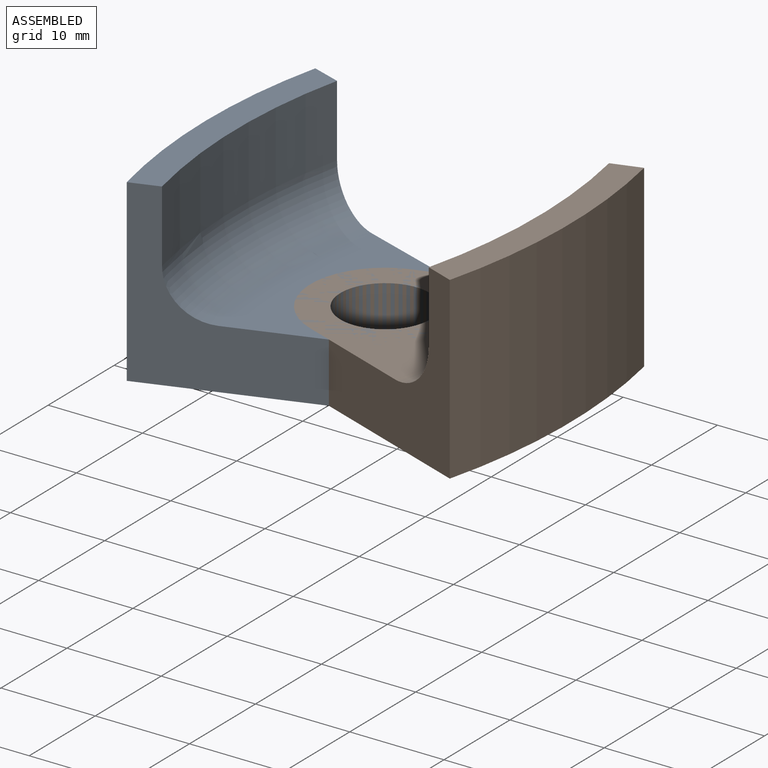
[diagram: assembled view]
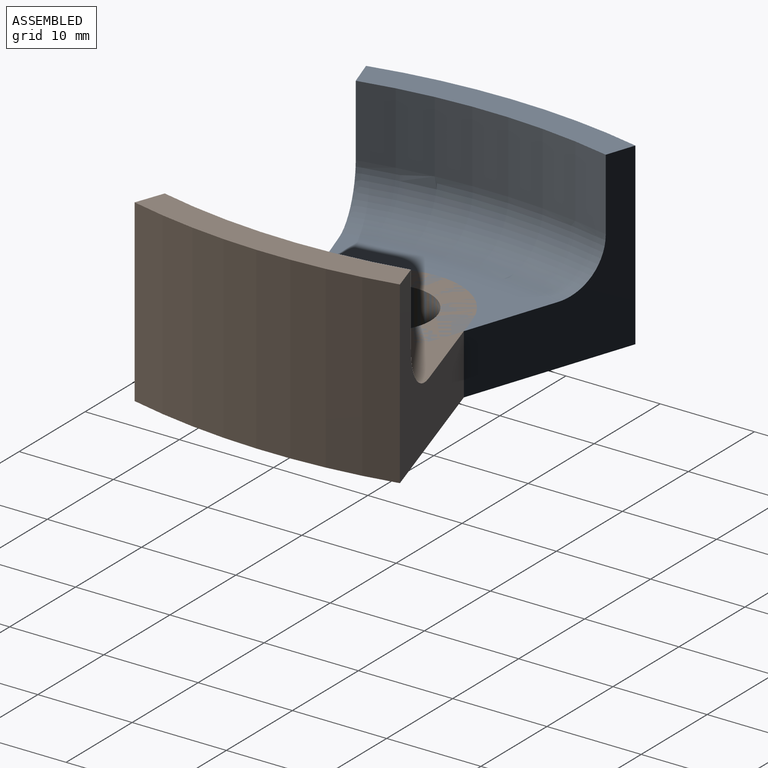
[diagram: assembled view, second angle]
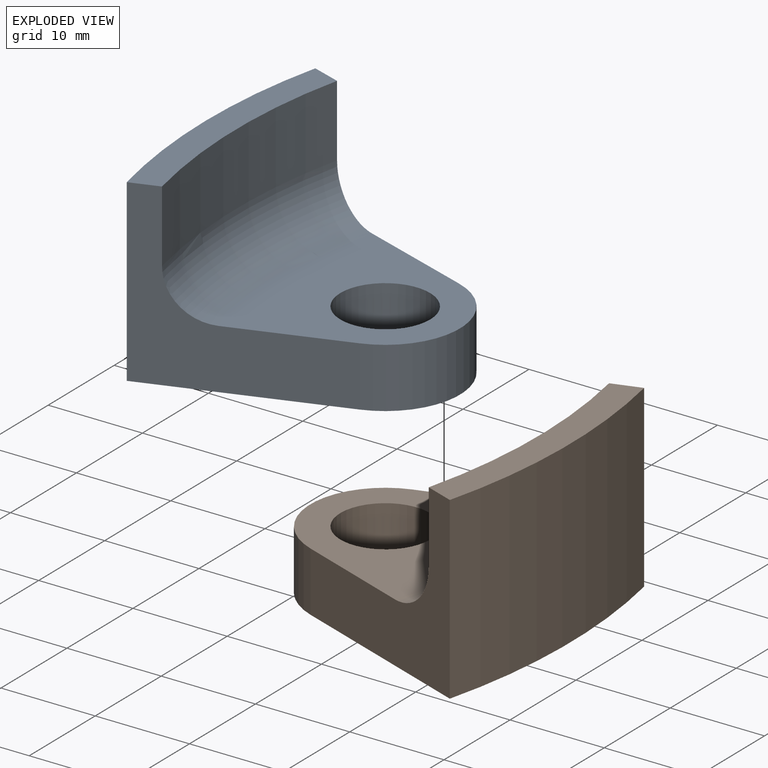
[diagram: exploded view]
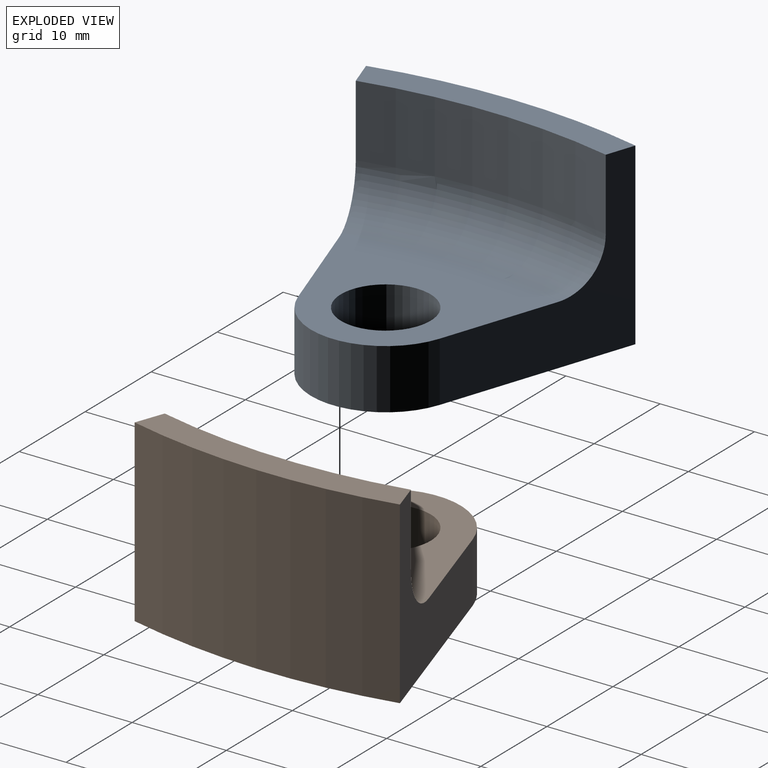
[diagram: exploded view, second angle]
ASSEMBLY  parts=2 mates=2
PART A: 10 faces, bbox 28.8x28.7x19.1 mm
  f0: plane 23.24x18.73mm, normal (0,0,1), area 238.9mm2, adj f1,f3,f4,f5,f9
  f1: plane 19.97x19.05mm, normal (0.32,0.95,0), area 180mm2, adj f0,f2,f4,f6,f7,f8,f9
  f2: cylinder r=63.5mm len=28.58mm, axis (0,0,-1), area 549.1mm2, adj f1,f3,f6,f8
  f3: plane 19.97x19.05mm, normal (0.32,-0.95,0), area 180mm2, adj f0,f2,f4,f6,f7,f8,f9
  f4: cylinder r=7.94mm len=15.03mm, axis (0,0,-1), area 125.4mm2, adj f0,f1,f3,f6
  f5: cylinder r=4.76mm len=9.53mm, axis (0,0,-1), area 190mm2, adj f0,f6
  f6: plane 28.58x26.99mm, normal (0,0,-1), area 454.5mm2, adj f1,f2,f3,f4,f5
  f7: cylinder r=60.32mm len=26.53mm, axis (0,0,-1), area 203.8mm2, adj f1,f3,f8,f9
  f8: plane 28.58x4.65mm, normal (0,0,1), area 88.2mm2, adj f1,f2,f3,f7
  f9: torus R=55.25mm, axis (0,0,1), area 203.8mm2, adj f0,f1,f3,f7
PART B: same geometry as A
PLACE A t=(21.52,-26.15,40.15)mm fixed
PLACE B rot(axis=(0,0,1),178.8deg) t=(-67.37,-25.2,40.15)mm
MATE planar A.f6 <-> B.f6  axis (0,0,-1) through (-31.66,-26.15,40.15)mm
MATE cylindrical A.f5 <-> B.f5  axis (0,0,-1) through (-22.93,-26.15,43.33)mm
